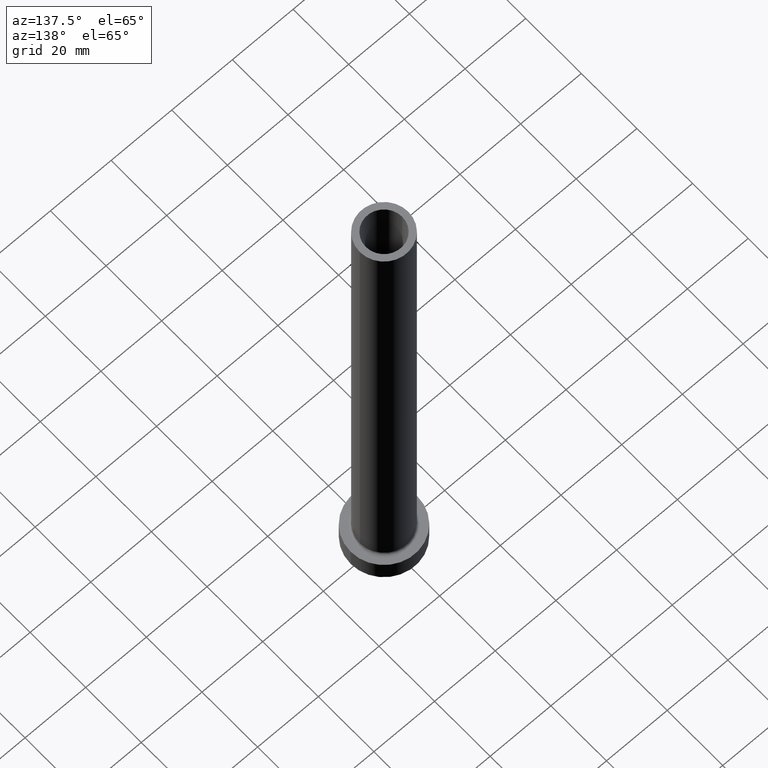
[diagram: clean part render]
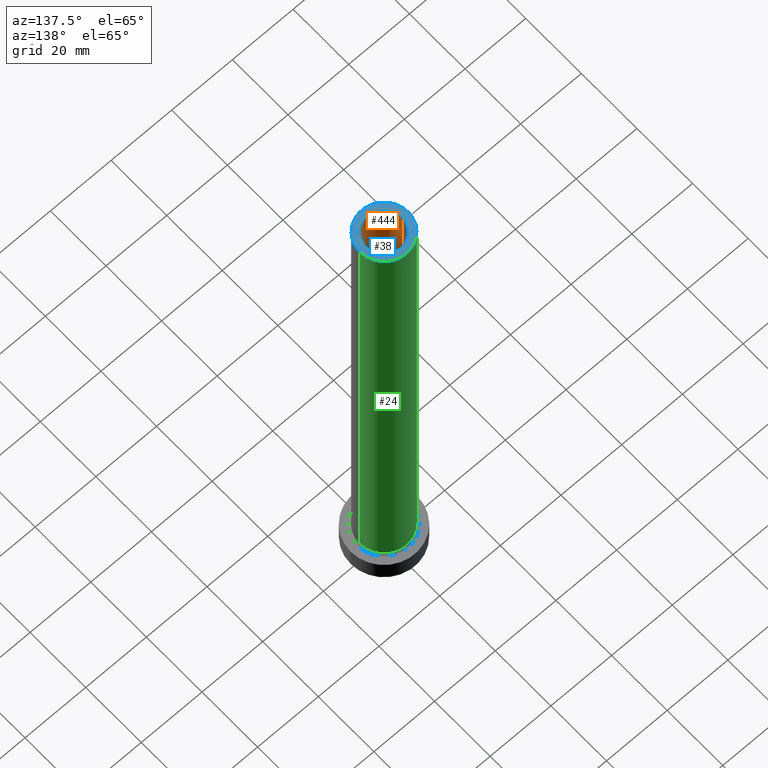
[diagram: same view with three faces highlighted in distinct colors, each labeled with its STEP entity id]
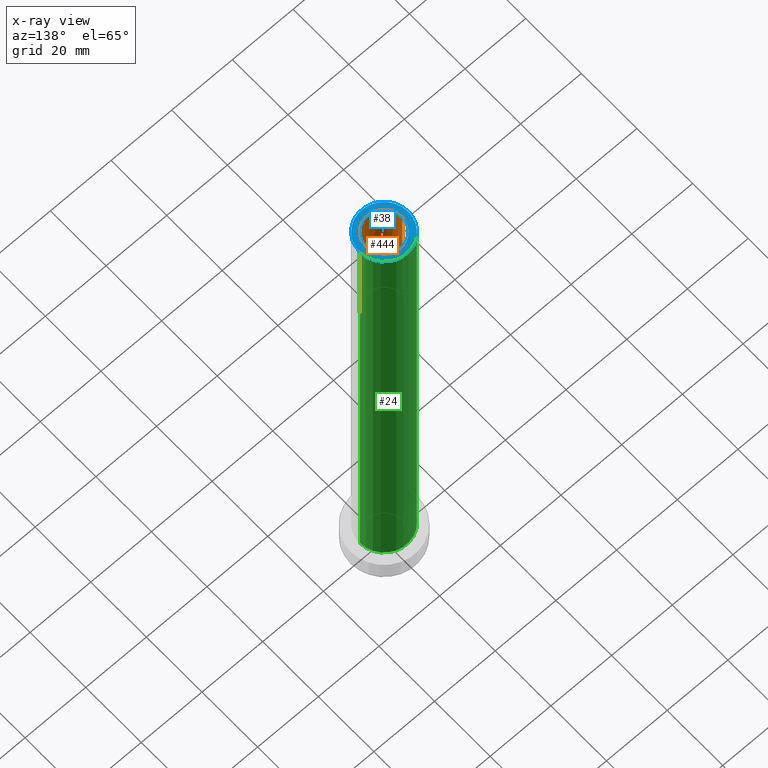
[diagram: x-ray of the same camera — body ghosted, the three highlighted faces saturated]
A machine part, auxiliary view with three faces highlighted in distinct colors.
The next image is the same camera in x-ray (body ghosted, the three faces saturated) — at least one of them is partly hidden behind the body in this view.
Their STEP definitions:

[orange] entity #444 — the highlighted cylindrical surface (edge-blend (fillet) strip) has radius 6 mm, axis along (0, 0, -1).
#11 = CARTESIAN_POINT ( 'NONE',  ( -6.000000000000000888, 0.000000000000000000, 130.0000000000000000 ) ) ;
#15 = ORIENTED_EDGE ( 'NONE', *, *, #260, .T. ) ;
#20 = EDGE_CURVE ( 'NONE', #51, #336, #442, .T. ) ;
#42 = LINE ( 'NONE', #428, #432 ) ;
#51 = VERTEX_POINT ( 'NONE', #11 ) ;
#52 = CARTESIAN_POINT ( 'NONE',  ( 0.000000000000000000, 0.000000000000000000, 130.0000000000000000 ) ) ;
#61 = CARTESIAN_POINT ( 'NONE',  ( 6.000000000000000888, 7.347880794884120722E-16, 130.0000000000000000 ) ) ;
#106 = VECTOR ( 'NONE', #218, 1000.000000000000000 ) ;
#112 = LINE ( 'NONE', #395, #106 ) ;
#136 = CARTESIAN_POINT ( 'NONE',  ( 6.000000000000000888, 7.347880794884120722E-16, 175.0000000000000284 ) ) ;
#160 = ORIENTED_EDGE ( 'NONE', *, *, #458, .T. ) ;
#165 = DIRECTION ( 'NONE',  ( 0.000000000000000000, 0.000000000000000000, 1.000000000000000000 ) ) ;
#217 = EDGE_CURVE ( 'NONE', #265, #51, #112, .T. ) ;
#218 = DIRECTION ( 'NONE',  ( 0.000000000000000000, 0.000000000000000000, -1.000000000000000000 ) ) ;
#220 = DIRECTION ( 'NONE',  ( 0.000000000000000000, 0.000000000000000000, -1.000000000000000000 ) ) ;
#229 = EDGE_LOOP ( 'NONE', ( #160, #15, #401, #294 ) ) ;
#232 = CARTESIAN_POINT ( 'NONE',  ( 0.000000000000000000, 0.000000000000000000, 175.0000000000000284 ) ) ;
#245 = AXIS2_PLACEMENT_3D ( 'NONE', #52, #269, #307 ) ;
#260 = EDGE_CURVE ( 'NONE', #438, #336, #42, .T. ) ;
#265 = VERTEX_POINT ( 'NONE', #460 ) ;
#269 = DIRECTION ( 'NONE',  ( 0.000000000000000000, 0.000000000000000000, 1.000000000000000000 ) ) ;
#271 = DIRECTION ( 'NONE',  ( 1.000000000000000000, 0.000000000000000000, 0.000000000000000000 ) ) ;
#294 = ORIENTED_EDGE ( 'NONE', *, *, #217, .F. ) ;
#306 = FACE_OUTER_BOUND ( 'NONE', #229, .T. ) ;
#307 = DIRECTION ( 'NONE',  ( 1.000000000000000000, 0.000000000000000000, 0.000000000000000000 ) ) ;
#336 = VERTEX_POINT ( 'NONE', #61 ) ;
#346 = CARTESIAN_POINT ( 'NONE',  ( 0.000000000000000000, 0.000000000000000000, 175.0000000000000284 ) ) ;
#350 = DIRECTION ( 'NONE',  ( -1.000000000000000000, 0.000000000000000000, 0.000000000000000000 ) ) ;
#384 = AXIS2_PLACEMENT_3D ( 'NONE', #346, #443, #350 ) ;
#395 = CARTESIAN_POINT ( 'NONE',  ( -6.000000000000000888, 0.000000000000000000, 175.0000000000000284 ) ) ;
#401 = ORIENTED_EDGE ( 'NONE', *, *, #20, .F. ) ;
#418 = CYLINDRICAL_SURFACE ( 'NONE', #384, 6.000000000000000888 ) ;
#428 = CARTESIAN_POINT ( 'NONE',  ( 6.000000000000000888, 7.347880794884120722E-16, 175.0000000000000284 ) ) ;
#432 = VECTOR ( 'NONE', #220, 1000.000000000000000 ) ;
#438 = VERTEX_POINT ( 'NONE', #136 ) ;
#441 = CIRCLE ( 'NONE', #452, 6.000000000000000888 ) ;
#442 = CIRCLE ( 'NONE', #245, 6.000000000000000888 ) ;
#443 = DIRECTION ( 'NONE',  ( 0.000000000000000000, 0.000000000000000000, -1.000000000000000000 ) ) ;
#444 = ADVANCED_FACE ( 'NONE', ( #306 ), #418, .F. ) ;
#452 = AXIS2_PLACEMENT_3D ( 'NONE', #232, #165, #271 ) ;
#458 = EDGE_CURVE ( 'NONE', #265, #438, #441, .T. ) ;
#460 = CARTESIAN_POINT ( 'NONE',  ( -6.000000000000000888, 0.000000000000000000, 175.0000000000000284 ) ) ;

[blue] entity #38 — the highlighted planar face has unit normal (0, 0, 1).
#8 = ORIENTED_EDGE ( 'NONE', *, *, #94, .T. ) ;
#10 = ORIENTED_EDGE ( 'NONE', *, *, #458, .F. ) ;
#21 = FACE_OUTER_BOUND ( 'NONE', #437, .T. ) ;
#38 = ADVANCED_FACE ( 'NONE', ( #371, #21 ), #259, .T. ) ;
#46 = CARTESIAN_POINT ( 'NONE',  ( 0.000000000000000000, 0.000000000000000000, 175.0000000000000284 ) ) ;
#48 = CIRCLE ( 'NONE', #457, 8.000000000000000000 ) ;
#53 = ORIENTED_EDGE ( 'NONE', *, *, #90, .T. ) ;
#76 = DIRECTION ( 'NONE',  ( 1.000000000000000000, 0.000000000000000000, 0.000000000000000000 ) ) ;
#79 = CIRCLE ( 'NONE', #267, 8.000000000000000000 ) ;
#83 = VERTEX_POINT ( 'NONE', #272 ) ;
#90 = EDGE_CURVE ( 'NONE', #83, #200, #48, .T. ) ;
#94 = EDGE_CURVE ( 'NONE', #200, #83, #79, .T. ) ;
#103 = CARTESIAN_POINT ( 'NONE',  ( 8.000000000000000000, 9.797174393178823685E-16, 175.0000000000000284 ) ) ;
#108 = DIRECTION ( 'NONE',  ( 1.000000000000000000, 0.000000000000000000, 0.000000000000000000 ) ) ;
#122 = DIRECTION ( 'NONE',  ( 1.000000000000000000, 0.000000000000000000, -0.000000000000000000 ) ) ;
#136 = CARTESIAN_POINT ( 'NONE',  ( 6.000000000000000888, 7.347880794884120722E-16, 175.0000000000000284 ) ) ;
#148 = CARTESIAN_POINT ( 'NONE',  ( 0.000000000000000000, 0.000000000000000000, 175.0000000000000284 ) ) ;
#152 = CARTESIAN_POINT ( 'NONE',  ( 0.000000000000000000, 0.000000000000000000, 175.0000000000000284 ) ) ;
#165 = DIRECTION ( 'NONE',  ( 0.000000000000000000, 0.000000000000000000, 1.000000000000000000 ) ) ;
#194 = DIRECTION ( 'NONE',  ( 0.000000000000000000, 0.000000000000000000, 1.000000000000000000 ) ) ;
#200 = VERTEX_POINT ( 'NONE', #103 ) ;
#232 = CARTESIAN_POINT ( 'NONE',  ( 0.000000000000000000, 0.000000000000000000, 175.0000000000000284 ) ) ;
#235 = CIRCLE ( 'NONE', #447, 6.000000000000000888 ) ;
#251 = CARTESIAN_POINT ( 'NONE',  ( 0.000000000000000000, 0.000000000000000000, 175.0000000000000284 ) ) ;
#259 = PLANE ( 'NONE',  #349 ) ;
#261 = ORIENTED_EDGE ( 'NONE', *, *, #270, .F. ) ;
#265 = VERTEX_POINT ( 'NONE', #460 ) ;
#267 = AXIS2_PLACEMENT_3D ( 'NONE', #251, #392, #76 ) ;
#270 = EDGE_CURVE ( 'NONE', #438, #265, #235, .T. ) ;
#271 = DIRECTION ( 'NONE',  ( 1.000000000000000000, 0.000000000000000000, 0.000000000000000000 ) ) ;
#272 = CARTESIAN_POINT ( 'NONE',  ( -8.000000000000000000, 0.000000000000000000, 175.0000000000000284 ) ) ;
#287 = DIRECTION ( 'NONE',  ( 0.000000000000000000, 0.000000000000000000, 1.000000000000000000 ) ) ;
#349 = AXIS2_PLACEMENT_3D ( 'NONE', #46, #194, #122 ) ;
#371 = FACE_BOUND ( 'NONE', #431, .T. ) ;
#392 = DIRECTION ( 'NONE',  ( 0.000000000000000000, 0.000000000000000000, 1.000000000000000000 ) ) ;
#402 = DIRECTION ( 'NONE',  ( 1.000000000000000000, 0.000000000000000000, 0.000000000000000000 ) ) ;
#431 = EDGE_LOOP ( 'NONE', ( #10, #261 ) ) ;
#434 = DIRECTION ( 'NONE',  ( 0.000000000000000000, 0.000000000000000000, 1.000000000000000000 ) ) ;
#437 = EDGE_LOOP ( 'NONE', ( #53, #8 ) ) ;
#438 = VERTEX_POINT ( 'NONE', #136 ) ;
#441 = CIRCLE ( 'NONE', #452, 6.000000000000000888 ) ;
#447 = AXIS2_PLACEMENT_3D ( 'NONE', #152, #434, #402 ) ;
#452 = AXIS2_PLACEMENT_3D ( 'NONE', #232, #165, #271 ) ;
#457 = AXIS2_PLACEMENT_3D ( 'NONE', #148, #287, #108 ) ;
#458 = EDGE_CURVE ( 'NONE', #265, #438, #441, .T. ) ;
#460 = CARTESIAN_POINT ( 'NONE',  ( -6.000000000000000888, 0.000000000000000000, 175.0000000000000284 ) ) ;

[green] entity #24 — the highlighted cylindrical surface (edge-blend (fillet) strip) has radius 8 mm, axis along (-0, -0, -1).
#24 = ADVANCED_FACE ( 'NONE', ( #198 ), #412, .T. ) ;
#58 = VECTOR ( 'NONE', #399, 1000.000000000000000 ) ;
#70 = VECTOR ( 'NONE', #77, 1000.000000000000000 ) ;
#76 = DIRECTION ( 'NONE',  ( 1.000000000000000000, 0.000000000000000000, 0.000000000000000000 ) ) ;
#77 = DIRECTION ( 'NONE',  ( -0.000000000000000000, -0.000000000000000000, -1.000000000000000000 ) ) ;
#79 = CIRCLE ( 'NONE', #267, 8.000000000000000000 ) ;
#83 = VERTEX_POINT ( 'NONE', #272 ) ;
#94 = EDGE_CURVE ( 'NONE', #200, #83, #79, .T. ) ;
#103 = CARTESIAN_POINT ( 'NONE',  ( 8.000000000000000000, 9.797174393178823685E-16, 175.0000000000000284 ) ) ;
#113 = CARTESIAN_POINT ( 'NONE',  ( 8.000000000000000000, 9.797174393178823685E-16, 175.0000000000000284 ) ) ;
#114 = ORIENTED_EDGE ( 'NONE', *, *, #94, .F. ) ;
#119 = ORIENTED_EDGE ( 'NONE', *, *, #292, .T. ) ;
#123 = EDGE_CURVE ( 'NONE', #83, #196, #364, .T. ) ;
#127 = CARTESIAN_POINT ( 'NONE',  ( 8.000000000000000000, 9.797174393178823685E-16, 7.700000000000012612 ) ) ;
#182 = CARTESIAN_POINT ( 'NONE',  ( -8.000000000000000000, 0.000000000000000000, 175.0000000000000284 ) ) ;
#189 = ORIENTED_EDGE ( 'NONE', *, *, #419, .T. ) ;
#191 = ORIENTED_EDGE ( 'NONE', *, *, #123, .F. ) ;
#196 = VERTEX_POINT ( 'NONE', #423 ) ;
#198 = FACE_OUTER_BOUND ( 'NONE', #367, .T. ) ;
#200 = VERTEX_POINT ( 'NONE', #103 ) ;
#202 = CARTESIAN_POINT ( 'NONE',  ( 0.000000000000000000, 0.000000000000000000, 7.700000000000012612 ) ) ;
#239 = DIRECTION ( 'NONE',  ( 1.000000000000000000, 0.000000000000000000, 0.000000000000000000 ) ) ;
#250 = CIRCLE ( 'NONE', #347, 8.000000000000000000 ) ;
#251 = CARTESIAN_POINT ( 'NONE',  ( 0.000000000000000000, 0.000000000000000000, 175.0000000000000284 ) ) ;
#257 = AXIS2_PLACEMENT_3D ( 'NONE', #348, #262, #404 ) ;
#262 = DIRECTION ( 'NONE',  ( -0.000000000000000000, -0.000000000000000000, -1.000000000000000000 ) ) ;
#267 = AXIS2_PLACEMENT_3D ( 'NONE', #251, #392, #76 ) ;
#272 = CARTESIAN_POINT ( 'NONE',  ( -8.000000000000000000, 0.000000000000000000, 175.0000000000000284 ) ) ;
#292 = EDGE_CURVE ( 'NONE', #200, #435, #317, .T. ) ;
#317 = LINE ( 'NONE', #113, #70 ) ;
#347 = AXIS2_PLACEMENT_3D ( 'NONE', #202, #376, #239 ) ;
#348 = CARTESIAN_POINT ( 'NONE',  ( 0.000000000000000000, 0.000000000000000000, 175.0000000000000284 ) ) ;
#364 = LINE ( 'NONE', #182, #58 ) ;
#367 = EDGE_LOOP ( 'NONE', ( #114, #119, #189, #191 ) ) ;
#376 = DIRECTION ( 'NONE',  ( 0.000000000000000000, 0.000000000000000000, 1.000000000000000000 ) ) ;
#392 = DIRECTION ( 'NONE',  ( 0.000000000000000000, 0.000000000000000000, 1.000000000000000000 ) ) ;
#399 = DIRECTION ( 'NONE',  ( -0.000000000000000000, -0.000000000000000000, -1.000000000000000000 ) ) ;
#404 = DIRECTION ( 'NONE',  ( -1.000000000000000000, 0.000000000000000000, 0.000000000000000000 ) ) ;
#412 = CYLINDRICAL_SURFACE ( 'NONE', #257, 8.000000000000000000 ) ;
#419 = EDGE_CURVE ( 'NONE', #435, #196, #250, .T. ) ;
#423 = CARTESIAN_POINT ( 'NONE',  ( -8.000000000000000000, 0.000000000000000000, 7.700000000000012612 ) ) ;
#435 = VERTEX_POINT ( 'NONE', #127 ) ;